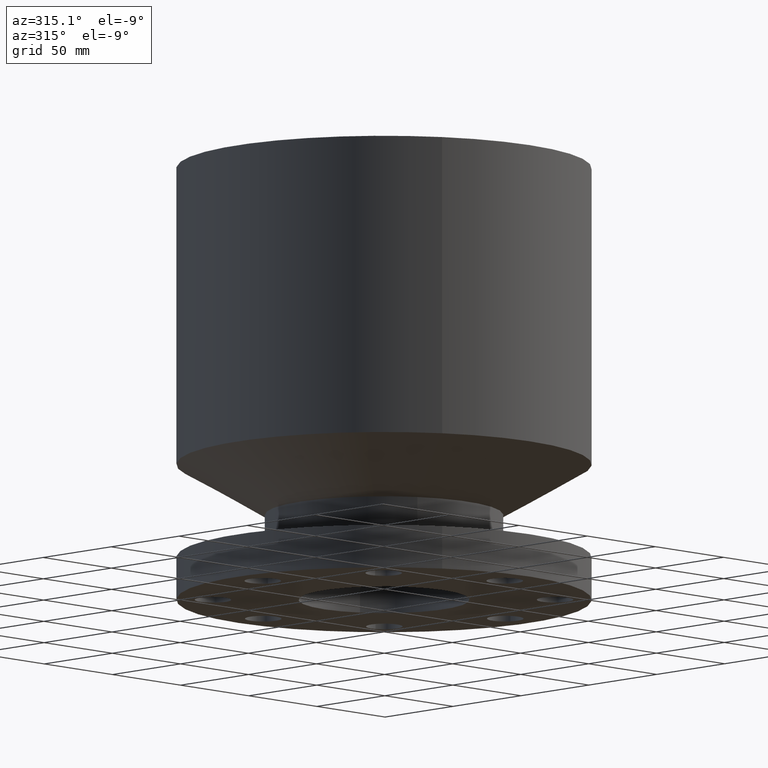
[diagram: clean part render]
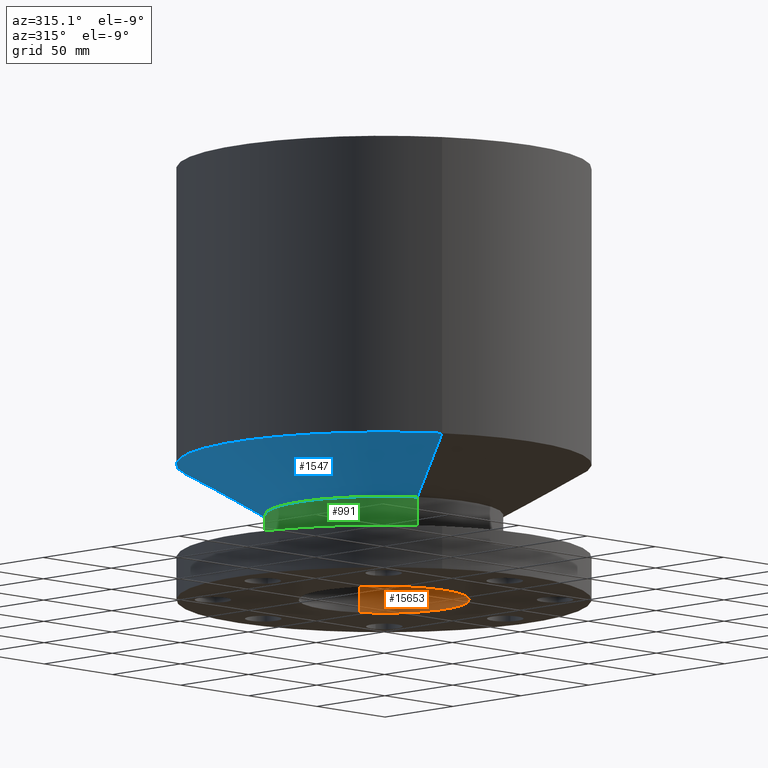
[diagram: same view with three faces highlighted in distinct colors, each labeled with its STEP entity id]
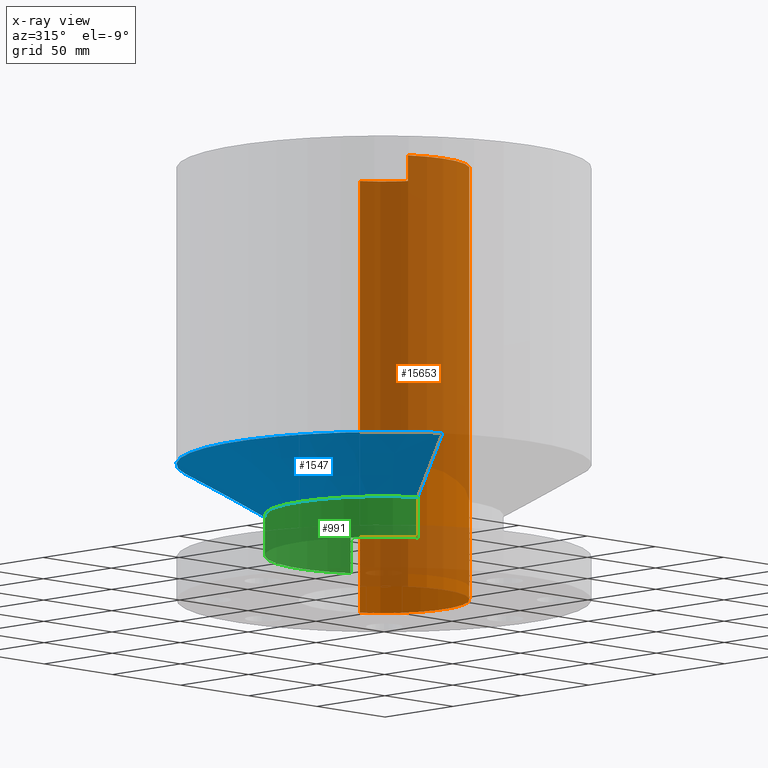
[diagram: x-ray of the same camera — body ghosted, the three highlighted faces saturated]
A machine part, auxiliary view with three faces highlighted in distinct colors.
The next image is the same camera in x-ray (body ghosted, the three faces saturated) — at least one of them is partly hidden behind the body in this view.
Their STEP definitions:

[orange] entity #15653 — the highlighted cylindrical surface (partial cylindrical patch) has radius 44.45 mm, axis along (0, 0, -1).
#15197=AXIS2_PLACEMENT_3D('Circle Axis2P3D',#15195,#15196,$) ;
#15626=AXIS2_PLACEMENT_3D('Cylinder Axis2P3D',#15623,#15624,#15625) ;
#15630=AXIS2_PLACEMENT_3D('Circle Axis2P3D',#15628,#15629,$) ;
#15190=CARTESIAN_POINT('Vertex',(-0.838994692561,-1.53576948331,8.93750000004)) ;
#15192=CARTESIAN_POINT('Vertex',(0.838994692561,1.53576948331,8.93750000004)) ;
#15195=CARTESIAN_POINT('Axis2P3D Location',(0.,0.,8.93750000004)) ;
#15623=CARTESIAN_POINT('Axis2P3D Location',(0.,0.,4.43750000002)) ;
#15628=CARTESIAN_POINT('Axis2P3D Location',(0.,0.,0.)) ;
#15632=CARTESIAN_POINT('Vertex',(-0.838994692561,-1.53576948331,0.)) ;
#15634=CARTESIAN_POINT('Vertex',(0.838994692561,1.53576948331,0.)) ;
#15637=CARTESIAN_POINT('Line Origine',(-0.838994692561,-1.53576948331,4.46875000002)) ;
#15642=CARTESIAN_POINT('Line Origine',(0.838994692561,1.53576948331,4.46875000002)) ;
#15196=DIRECTION('Axis2P3D Direction',(0.,0.,-0.0393700787402)) ;
#15624=DIRECTION('Axis2P3D Direction',(0.,0.,-0.0393700787402)) ;
#15625=DIRECTION('Axis2P3D XDirection',(-0.0188750212049,-0.0345504945626,0.)) ;
#15629=DIRECTION('Axis2P3D Direction',(0.,0.,-0.0393700787402)) ;
#15638=DIRECTION('Vector Direction',(0.,0.,-0.0393700787402)) ;
#15643=DIRECTION('Vector Direction',(0.,0.,-0.0393700787402)) ;
#15639=VECTOR('Line Direction',#15638,0.0393700787402) ;
#15644=VECTOR('Line Direction',#15643,0.0393700787402) ;
#15648=ORIENTED_EDGE('',*,*,#15636,.F.) ;
#15649=ORIENTED_EDGE('',*,*,#15641,.F.) ;
#15650=ORIENTED_EDGE('',*,*,#15199,.F.) ;
#15651=ORIENTED_EDGE('',*,*,#15646,.T.) ;
#15653=ADVANCED_FACE('PartBody',(#15652),#15627,.F.) ;
#15198=CIRCLE('generated circle',#15197,1.75000000001) ;
#15631=CIRCLE('generated circle',#15630,1.75000000001) ;
#15627=CYLINDRICAL_SURFACE('generated cylinder',#15626,1.75000000001) ;
#15199=EDGE_CURVE('',#15193,#15191,#15198,.T.) ;
#15636=EDGE_CURVE('',#15633,#15635,#15631,.F.) ;
#15641=EDGE_CURVE('',#15191,#15633,#15640,.T.) ;
#15646=EDGE_CURVE('',#15193,#15635,#15645,.T.) ;
#15647=EDGE_LOOP('',(#15648,#15649,#15650,#15651)) ;
#15652=FACE_OUTER_BOUND('',#15647,.T.) ;
#15640=LINE('Line',#15637,#15639) ;
#15645=LINE('Line',#15642,#15644) ;
#15191=VERTEX_POINT('',#15190) ;
#15193=VERTEX_POINT('',#15192) ;
#15633=VERTEX_POINT('',#15632) ;
#15635=VERTEX_POINT('',#15634) ;

[blue] entity #1547 — the highlighted conical surface has half-angle 60 deg.
#982=AXIS2_PLACEMENT_3D('Circle Axis2P3D',#980,#981,$) ;
#1508=AXIS2_PLACEMENT_3D('Cone Axis2P3D',#1505,#1506,#1507) ;
#1538=AXIS2_PLACEMENT_3D('Circle Axis2P3D',#1536,#1537,$) ;
#958=CARTESIAN_POINT('Vertex',(1.1697983142,2.14130145102,1.75750000001)) ;
#965=CARTESIAN_POINT('Vertex',(-1.1697983142,-2.14130145102,1.75750000001)) ;
#980=CARTESIAN_POINT('Axis2P3D Location',(0.,0.,1.75750000001)) ;
#1505=CARTESIAN_POINT('Axis2P3D Location',(0.,0.,1.75750000001)) ;
#1510=CARTESIAN_POINT('Line Origine',(1.60367842664,2.93551366954,2.28000199363)) ;
#1514=CARTESIAN_POINT('Vertex',(2.03755853908,3.72972588805,2.80250398724)) ;
#1521=CARTESIAN_POINT('Vertex',(-2.03755853908,-3.72972588805,2.80250398724)) ;
#1524=CARTESIAN_POINT('Line Origine',(-1.60367842664,-2.93551366954,2.28000199363)) ;
#1536=CARTESIAN_POINT('Axis2P3D Location',(0.,0.,2.80250398724)) ;
#981=DIRECTION('Axis2P3D Direction',(0.,0.,-0.0393700787402)) ;
#1506=DIRECTION('Axis2P3D Direction',(-0.,-0.,0.0393700787402)) ;
#1507=DIRECTION('Axis2P3D XDirection',(0.0188750212049,0.0345504945626,0.)) ;
#1511=DIRECTION('Vector Direction',(0.0163462478604,0.0299216060045,0.0196850393701)) ;
#1525=DIRECTION('Vector Direction',(-0.0163462478604,-0.0299216060045,0.0196850393701)) ;
#1537=DIRECTION('Axis2P3D Direction',(-0.,0.,0.0393700787402)) ;
#1512=VECTOR('Line Direction',#1511,0.0393700787402) ;
#1526=VECTOR('Line Direction',#1525,0.0393700787402) ;
#1542=ORIENTED_EDGE('',*,*,#984,.F.) ;
#1543=ORIENTED_EDGE('',*,*,#1528,.T.) ;
#1544=ORIENTED_EDGE('',*,*,#1540,.T.) ;
#1545=ORIENTED_EDGE('',*,*,#1516,.F.) ;
#1547=ADVANCED_FACE('PartBody',(#1546),#1509,.T.) ;
#983=CIRCLE('generated circle',#982,2.44000000001) ;
#1539=CIRCLE('generated circle',#1538,4.25000000002) ;
#1509=CONICAL_SURFACE('Cone',#1508,2.44000000001,1.0471975512) ;
#984=EDGE_CURVE('',#966,#959,#983,.T.) ;
#1516=EDGE_CURVE('',#959,#1515,#1513,.T.) ;
#1528=EDGE_CURVE('',#966,#1522,#1527,.T.) ;
#1540=EDGE_CURVE('',#1522,#1515,#1539,.F.) ;
#1541=EDGE_LOOP('',(#1542,#1543,#1544,#1545)) ;
#1546=FACE_OUTER_BOUND('',#1541,.T.) ;
#1513=LINE('Line',#1510,#1512) ;
#1527=LINE('Line',#1524,#1526) ;
#959=VERTEX_POINT('',#958) ;
#966=VERTEX_POINT('',#965) ;
#1515=VERTEX_POINT('',#1514) ;
#1522=VERTEX_POINT('',#1521) ;

[green] entity #991 — the highlighted cylindrical surface (partial cylindrical patch) has radius 61.976 mm, axis along (0, 0, -1).
#760=AXIS2_PLACEMENT_3D('Circle Axis2P3D',#758,#759,$) ;
#952=AXIS2_PLACEMENT_3D('Cylinder Axis2P3D',#949,#950,#951) ;
#982=AXIS2_PLACEMENT_3D('Circle Axis2P3D',#980,#981,$) ;
#736=CARTESIAN_POINT('Vertex',(1.1697983142,2.14130145102,0.918480762117)) ;
#743=CARTESIAN_POINT('Vertex',(-1.1697983142,-2.14130145102,0.918480762117)) ;
#758=CARTESIAN_POINT('Axis2P3D Location',(0.,0.,0.918480762117)) ;
#949=CARTESIAN_POINT('Axis2P3D Location',(0.,0.,4.43750000002)) ;
#954=CARTESIAN_POINT('Line Origine',(1.1697983142,2.14130145102,1.33799038106)) ;
#958=CARTESIAN_POINT('Vertex',(1.1697983142,2.14130145102,1.75750000001)) ;
#965=CARTESIAN_POINT('Vertex',(-1.1697983142,-2.14130145102,1.75750000001)) ;
#968=CARTESIAN_POINT('Line Origine',(-1.1697983142,-2.14130145102,1.33799038106)) ;
#980=CARTESIAN_POINT('Axis2P3D Location',(0.,0.,1.75750000001)) ;
#759=DIRECTION('Axis2P3D Direction',(-0.,0.,0.0393700787402)) ;
#950=DIRECTION('Axis2P3D Direction',(0.,0.,-0.0393700787402)) ;
#951=DIRECTION('Axis2P3D XDirection',(-0.0188750212049,-0.0345504945626,0.)) ;
#955=DIRECTION('Vector Direction',(0.,0.,-0.0393700787402)) ;
#969=DIRECTION('Vector Direction',(0.,0.,-0.0393700787402)) ;
#981=DIRECTION('Axis2P3D Direction',(0.,0.,-0.0393700787402)) ;
#956=VECTOR('Line Direction',#955,0.0393700787402) ;
#970=VECTOR('Line Direction',#969,0.0393700787402) ;
#986=ORIENTED_EDGE('',*,*,#762,.F.) ;
#987=ORIENTED_EDGE('',*,*,#972,.T.) ;
#988=ORIENTED_EDGE('',*,*,#984,.T.) ;
#989=ORIENTED_EDGE('',*,*,#960,.F.) ;
#991=ADVANCED_FACE('PartBody',(#990),#953,.T.) ;
#761=CIRCLE('generated circle',#760,2.44000000001) ;
#983=CIRCLE('generated circle',#982,2.44000000001) ;
#953=CYLINDRICAL_SURFACE('generated cylinder',#952,2.44000000001) ;
#762=EDGE_CURVE('',#744,#737,#761,.F.) ;
#960=EDGE_CURVE('',#737,#959,#957,.F.) ;
#972=EDGE_CURVE('',#744,#966,#971,.F.) ;
#984=EDGE_CURVE('',#966,#959,#983,.T.) ;
#985=EDGE_LOOP('',(#986,#987,#988,#989)) ;
#990=FACE_OUTER_BOUND('',#985,.T.) ;
#957=LINE('Line',#954,#956) ;
#971=LINE('Line',#968,#970) ;
#737=VERTEX_POINT('',#736) ;
#744=VERTEX_POINT('',#743) ;
#959=VERTEX_POINT('',#958) ;
#966=VERTEX_POINT('',#965) ;